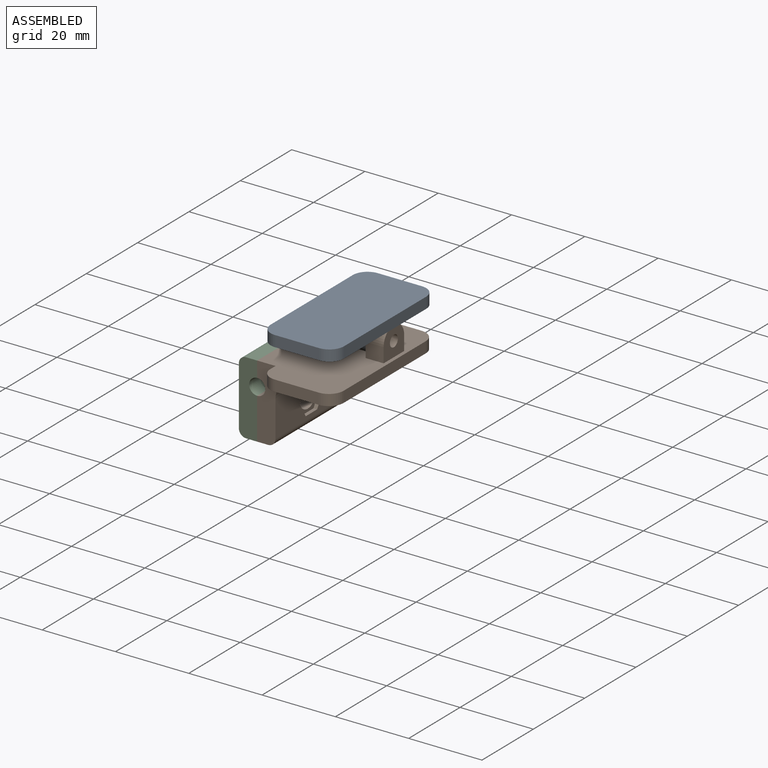
[diagram: assembled view]
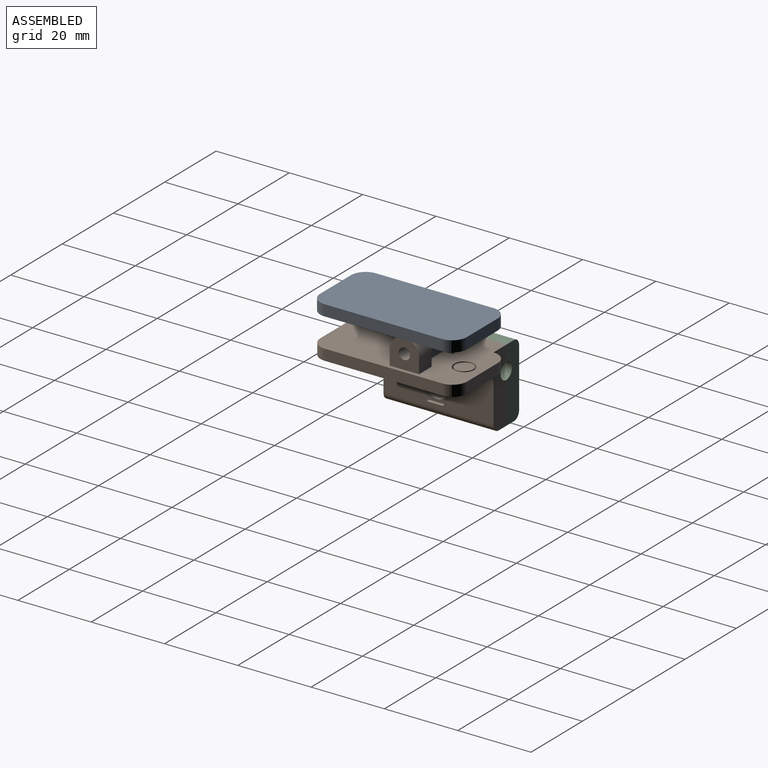
[diagram: assembled view, second angle]
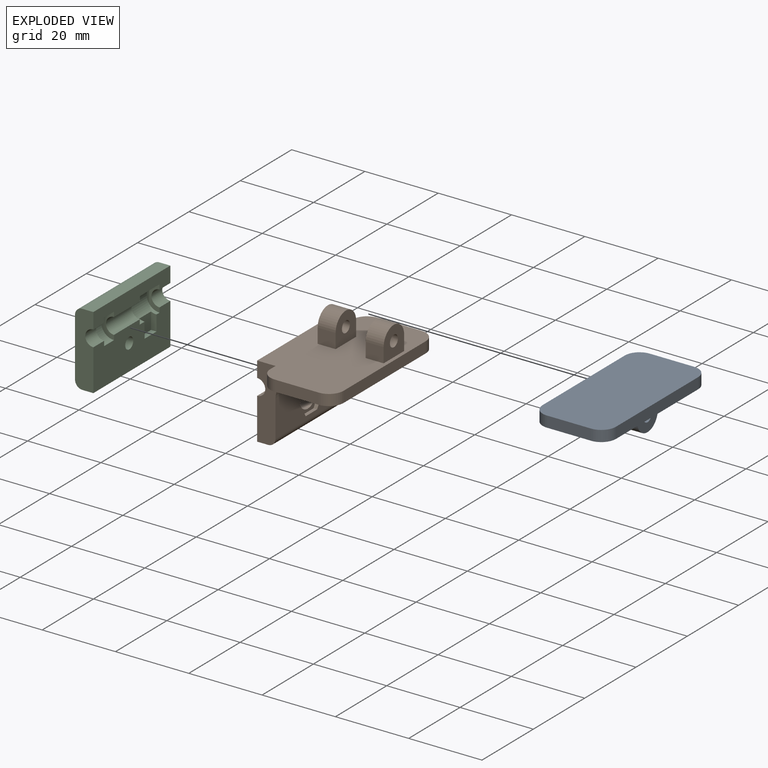
[diagram: exploded view]
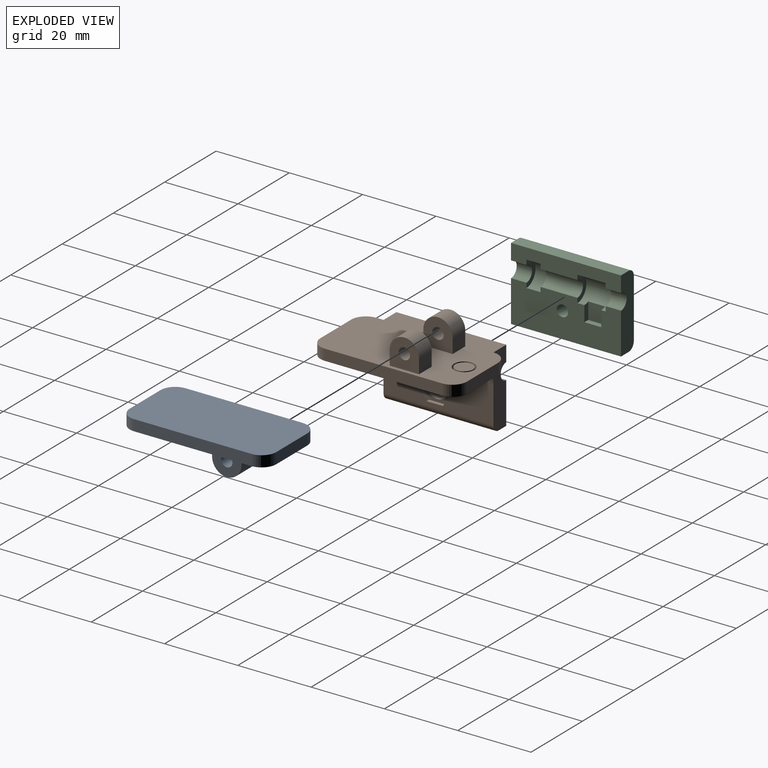
[diagram: exploded view, second angle]
ASSEMBLY  parts=3 mates=2
PART A: 20 faces, bbox 40x20x11 mm
  f0: plane 40x20mm, normal (0,0,1), area 699.2mm2, adj f1,f2,f3,f4,f6,f7,f8,f9
  f1: plane 12x3mm, normal (-1,0,0), area 36mm2, adj f0,f5,f6,f7
  f2: plane 32x3mm, normal (0,-1,0), area 96mm2, adj f0,f5,f7,f8
  f3: plane 12x3mm, normal (1,0,0), area 36mm2, adj f0,f5,f8,f9
  f4: plane 32x3mm, normal (0,1,0), area 96mm2, adj f0,f5,f6,f9
  f5: plane 40x20mm, normal (0,0,-1), area 786.3mm2, adj f1,f2,f3,f4,f6,f7,f8,f9
  f6: cylinder r=4mm len=4mm, axis (0,0,1), area 18.8mm2, adj f0,f1,f4,f5
  f7: cylinder r=4mm len=4mm, axis (0,0,-1), area 18.8mm2, adj f0,f1,f2,f5
  f8: cylinder r=4mm len=4mm, axis (0,0,1), area 18.8mm2, adj f0,f2,f3,f5
  f9: cylinder r=4mm len=4mm, axis (0,0,-1), area 18.8mm2, adj f0,f3,f4,f5
  f10: plane 8x8mm, normal (0,-1,0), area 49.6mm2, adj f0,f11,f13,f14,f15
  f11: plane 7.8x4mm, normal (1,0,0), area 31.2mm2, adj f0,f10,f12,f14
  f12: plane 8x8mm, normal (0,1,0), area 49.6mm2, adj f0,f11,f13,f14,f15
  f13: plane 7.8x4mm, normal (-1,0,0), area 31.2mm2, adj f0,f10,f12,f14
  f14: cylinder r=4mm len=8mm, axis (0,1,0), area 98mm2, adj f10,f11,f12,f13
  f15: cylinder r=1.55mm len=7.8mm, axis (0,-1,0), area 76mm2, adj f10,f12
  f16: cylinder r=2.4mm len=4.8mm, axis (0,0,1), area 22.6mm2, adj f18,f19
  f17: cylinder r=2.8mm len=5.6mm, axis (0,0,1), area 26.4mm2, adj f0,f18
  f18: plane 5.6x5.6mm, normal (0,0,1), area 6.5mm2, adj f16,f17
  f19: plane 4.8x4.8mm, normal (0,0,1), area 18.1mm2, adj f16
PART B: 55 faces, bbox 25x40x28 mm
  f0: plane 30x11.3mm, normal (-1,0,0), area 273.5mm2, adj f1,f2,f31,f32,f34,f35,f36,f37
  f1: cylinder r=3.15mm len=6.3mm, axis (1,0,0), area 79.2mm2, adj f0,f50
  f2: plane 20x10mm, normal (0,-1,0), area 96.9mm2, adj f0,f3,f4,f7,f9,f30,f32,f33
  f3: plane 30x4.3mm, normal (-1,0,0), area 114mm2, adj f2,f4,f31,f34,f35,f36,f37,f38
  f4: plane 40x25mm, normal (0,0,1), area 833.2mm2, adj f2,f3,f5,f6,f7,f8,f10,f11
  f5: plane 32x3mm, normal (1,0,0), area 96mm2, adj f4,f9,f26,f29
  f6: plane 12x3mm, normal (0,1,0), area 36mm2, adj f4,f9,f26,f27
  f7: plane 3x2mm, normal (-1,0,0), area 6mm2, adj f2,f4,f9,f28
  f8: plane 12x3mm, normal (0,-1,0), area 36mm2, adj f4,f9,f28,f29
  f9: plane 40x20mm, normal (0,0,-1), area 636.3mm2, adj f2,f5,f6,f7,f8,f26,f27,f28
  f10: plane 8x8mm, normal (1,0,0), area 49.6mm2, adj f4,f11,f13,f19,f21
  f11: plane 4.9x4mm, normal (0,1,0), area 19.6mm2, adj f4,f10,f12,f19
  f12: plane 8x8mm, normal (-1,0,0), area 49.6mm2, adj f4,f11,f13,f19,f21
  f13: plane 4.9x4mm, normal (0,-1,0), area 19.6mm2, adj f4,f10,f12,f19
  f14: plane 4.9x4mm, normal (0,1,0), area 19.6mm2, adj f4,f15,f17,f18
  f15: plane 8x8mm, normal (-1,0,0), area 49.6mm2, adj f4,f14,f16,f18,f20
  f16: plane 4.9x4mm, normal (0,-1,0), area 19.6mm2, adj f4,f15,f17,f18
  f17: plane 8x8mm, normal (1,0,0), area 49.6mm2, adj f4,f14,f16,f18,f20
  f18: cylinder r=4mm len=8mm, axis (1,0,0), area 61.6mm2, adj f14,f15,f16,f17
  f19: cylinder r=4mm len=8mm, axis (-1,0,0), area 61.6mm2, adj f10,f11,f12,f13
  f20: cylinder r=1.55mm len=4.9mm, axis (-1,0,0), area 47.7mm2, adj f15,f17
  f21: cylinder r=1.55mm len=4.9mm, axis (-1,0,0), area 47.7mm2, adj f10,f12
  f22: cylinder r=2.4mm len=4.8mm, axis (0,0,1), area 22.6mm2, adj f24,f25
  f23: cylinder r=2.8mm len=5.6mm, axis (0,0,1), area 26.4mm2, adj f4,f24
  f24: plane 5.6x5.6mm, normal (0,0,1), area 6.5mm2, adj f22,f23
  f25: plane 4.8x4.8mm, normal (0,0,1), area 18.1mm2, adj f22
  f26: cylinder r=4mm len=4mm, axis (0,0,1), area 18.8mm2, adj f4,f5,f6,f9
  f27: cylinder r=4mm len=4mm, axis (0,0,-1), area 18.8mm2, adj f4,f6,f9,f31
  f28: cylinder r=4mm len=4mm, axis (0,0,1), area 18.8mm2, adj f4,f7,f8,f9
  f29: cylinder r=4mm len=4mm, axis (0,0,-1), area 18.8mm2, adj f4,f5,f8,f9
  f30: plane 30x10mm, normal (1,0,0), area 247.4mm2, adj f2,f31,f33,f43,f44,f45,f46,f47
  f31: plane 20x10mm, normal (0,1,0), area 96.9mm2, adj f0,f3,f4,f9,f27,f30,f32,f33
  f32: plane 30x3mm, normal (0,0,-1), area 90mm2, adj f0,f2,f31,f43
  f33: cylinder r=5mm len=30mm, axis (0,1,0), area 235.6mm2, adj f2,f9,f30,f31
  f34: cylinder r=2.2mm len=4.4mm, axis (0,-1,0), area 29mm2, adj f0,f3,f31,f42
  f35: cylinder r=2.2mm len=4.4mm, axis (0,-1,0), area 29mm2, adj f0,f2,f3,f36
  f36: plane 7x3.5mm, normal (0,1,0), area 11.6mm2, adj f0,f3,f35,f37
  f37: cylinder r=3.5mm len=7mm, axis (0,-1,0), area 42.3mm2, adj f0,f3,f36,f38
  f38: plane 7x3.5mm, normal (0,-1,0), area 11.6mm2, adj f0,f3,f37,f39
  f39: cylinder r=2.2mm len=10.05mm, axis (0,-1,0), area 69.5mm2, adj f0,f3,f38,f40
  f40: plane 7x3.5mm, normal (0,1,0), area 11.6mm2, adj f0,f3,f39,f41
  f41: cylinder r=3.5mm len=7.7mm, axis (0,-1,0), area 77.5mm2, adj f0,f3,f40,f42,f51,f53,f54
  f42: plane 7x3.5mm, normal (0,-1,0), area 11.6mm2, adj f0,f3,f34,f41
  f43: cylinder r=2mm len=30mm, axis (0,1,0), area 94.2mm2, adj f2,f30,f31,f32
  f44: plane 4.5x1mm, normal (0,0,-1), area 4.5mm2, adj f30,f45,f49,f50
  f45: plane 3.9x2.25mm, normal (0,0.87,-0.5), area 4.5mm2, adj f30,f44,f46,f50
  f46: plane 3.9x2.25mm, normal (0,0.87,0.5), area 4.5mm2, adj f30,f45,f47,f50
  f47: plane 4.5x1mm, normal (0,0,1), area 4.5mm2, adj f30,f46,f48,f50
  f48: plane 3.9x2.25mm, normal (0,-0.87,0.5), area 4.5mm2, adj f30,f47,f49,f50
  f49: plane 3.9x2.25mm, normal (0,-0.87,-0.5), area 4.5mm2, adj f30,f44,f48,f50
  f50: plane 9x7.79mm, normal (1,0,0), area 21.4mm2, adj f1,f44,f45,f46,f47,f48,f49
  f51: plane 4.54x1.5mm, normal (0,-1,0), area 6.5mm2, adj f0,f41,f52,f54
  f52: plane 4.6x1.5mm, normal (0,0,1), area 6.9mm2, adj f0,f51,f53,f54
  f53: plane 4.54x1.5mm, normal (0,1,0), area 6.5mm2, adj f0,f41,f52,f54
  f54: plane 4.6x4.54mm, normal (-1,0,0), area 20.9mm2, adj f41,f51,f52,f53
PART C: 25 faces, bbox 30x20x5 mm
  f0: plane 30x11.3mm, normal (0,0,1), area 297.1mm2, adj f1,f2,f3,f6,f8,f9,f10,f11
  f1: cylinder r=1.55mm len=4mm, axis (0,0,-1), area 39mm2, adj f0,f20
  f2: plane 20x5mm, normal (1,0,0), area 90.7mm2, adj f0,f4,f5,f6,f7,f8,f17,f18
  f3: plane 20x5mm, normal (-1,0,0), area 90.7mm2, adj f0,f4,f5,f6,f7,f16,f17,f18
  f4: plane 30x4.3mm, normal (0,0,1), area 114mm2, adj f2,f3,f5,f8,f9,f10,f11,f12
  f5: plane 30x3mm, normal (0,1,0), area 90mm2, adj f2,f3,f4,f17
  f6: plane 30x3mm, normal (0,-1,0), area 90mm2, adj f0,f2,f3,f18
  f7: plane 30x16mm, normal (0,0,-1), area 451.7mm2, adj f2,f3,f17,f18,f19
  f8: cylinder r=2.2mm len=4.4mm, axis (1,0,0), area 29mm2, adj f0,f2,f4,f9
  f9: plane 7x3.5mm, normal (-1,0,0), area 11.6mm2, adj f0,f4,f8,f10
  f10: cylinder r=3.5mm len=7.7mm, axis (1,0,0), area 77.5mm2, adj f0,f4,f9,f11,f21,f23,f24
  f11: plane 7x3.5mm, normal (1,0,0), area 11.6mm2, adj f0,f4,f10,f12
  f12: cylinder r=2.2mm len=10.05mm, axis (1,0,0), area 69.5mm2, adj f0,f4,f11,f13
  f13: plane 7x3.5mm, normal (-1,0,0), area 11.6mm2, adj f0,f4,f12,f14
  f14: cylinder r=3.5mm len=7mm, axis (1,0,0), area 42.3mm2, adj f0,f4,f13,f15
  f15: plane 7x3.5mm, normal (1,0,0), area 11.6mm2, adj f0,f4,f14,f16
  f16: cylinder r=2.2mm len=4.4mm, axis (1,0,0), area 29mm2, adj f0,f3,f4,f15
  f17: cylinder r=2mm len=30mm, axis (-1,0,0), area 94.2mm2, adj f2,f3,f5,f7
  f18: cylinder r=2mm len=30mm, axis (1,0,0), area 94.2mm2, adj f2,f3,f6,f7
  f19: cylinder r=3mm len=6mm, axis (0,0,-1), area 18.8mm2, adj f7,f20
  f20: plane 6x6mm, normal (0,0,-1), area 20.7mm2, adj f1,f19
  f21: plane 4.54x1.5mm, normal (1,0,0), area 6.5mm2, adj f0,f10,f22,f24
  f22: plane 4.6x1.5mm, normal (0,1,0), area 6.9mm2, adj f0,f21,f23,f24
  f23: plane 4.54x1.5mm, normal (-1,0,0), area 6.5mm2, adj f0,f10,f22,f24
  f24: plane 4.6x4.54mm, normal (0,0,1), area 20.9mm2, adj f10,f21,f22,f23
PLACE A rot(axis=(-0.71,0.71,0),180deg) t=(-1.56,1.57,22.52)mm
PLACE B t=(-1.66,1.57,8.52)mm
PLACE C rot(axis=(0.58,0.58,0.58),120deg) t=(-21.66,2.57,1.52)mm
MATE parallel A.f15 <-> B.f18  axis (1,0,0) through (2.34,6.57,15.52)mm
MATE parallel C.f4 <-> B.f3  axis (1,0,0) through (-16.66,2.35,9.57)mm
